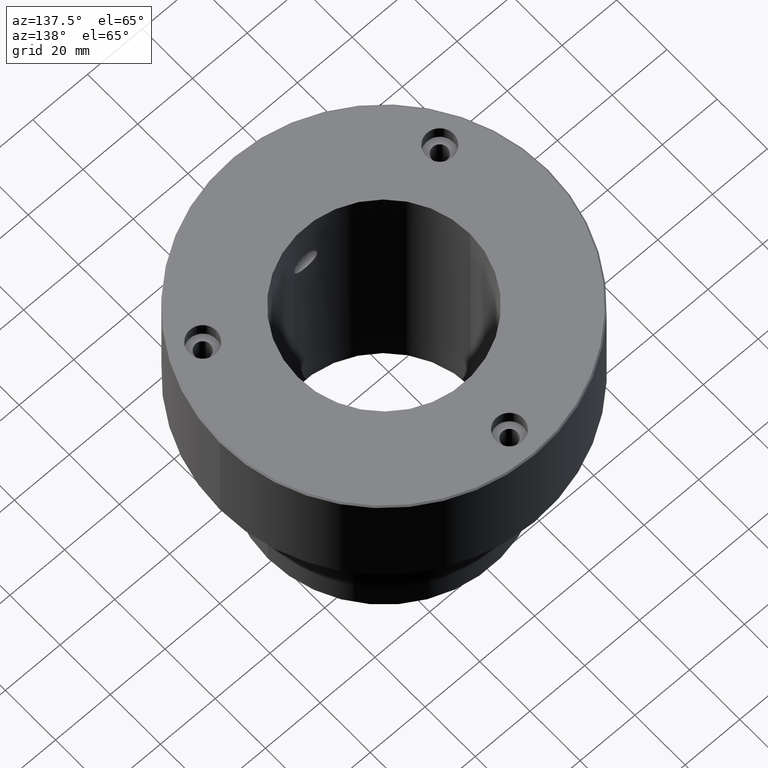
[diagram: clean part render]
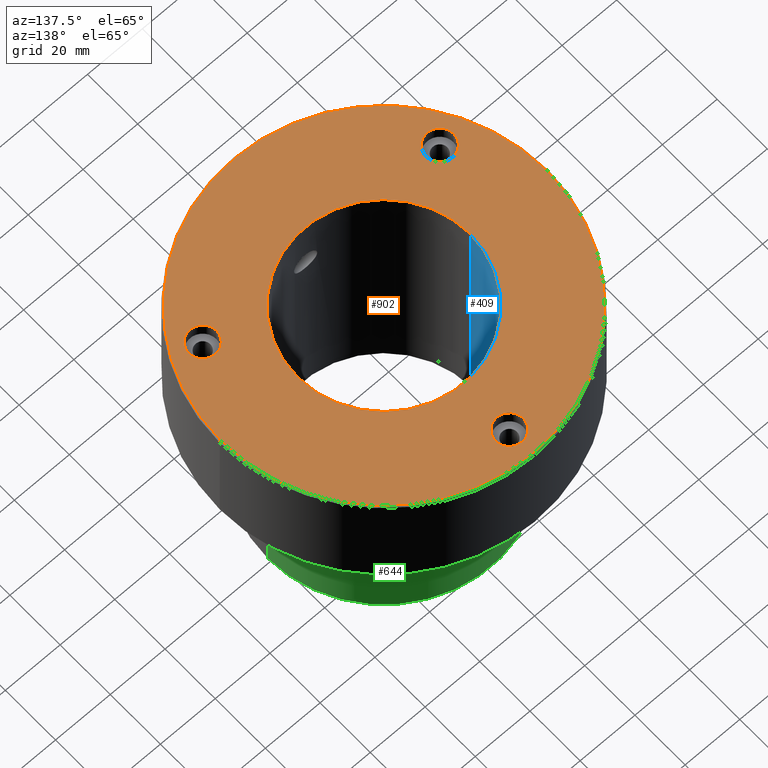
[diagram: same view with three faces highlighted in distinct colors, each labeled with its STEP entity id]
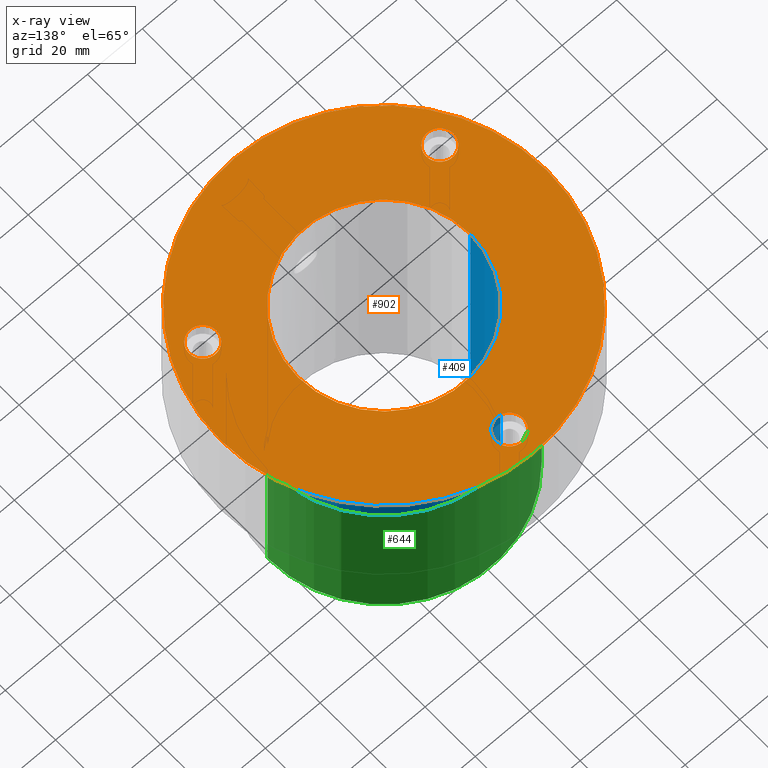
[diagram: x-ray of the same camera — body ghosted, the three highlighted faces saturated]
A machine part, auxiliary view with three faces highlighted in distinct colors.
The next image is the same camera in x-ray (body ghosted, the three faces saturated) — at least one of them is partly hidden behind the body in this view.
Their STEP definitions:

[orange] entity #902 — the highlighted planar face has unit normal (0, -0, 1).
#6 = CARTESIAN_POINT ( 'NONE',  ( 59.50000000000003553, 7.317264624905437724E-15, 0.000000000000000000 ) ) ;
#27 = DIRECTION ( 'NONE',  ( 1.000000000000000000, 0.000000000000000000, 0.000000000000000000 ) ) ;
#57 = AXIS2_PLACEMENT_3D ( 'NONE', #919, #235, #688 ) ;
#73 = CIRCLE ( 'NONE', #974, 5.000000000000000888 ) ;
#94 = PLANE ( 'NONE',  #261 ) ;
#156 = CIRCLE ( 'NONE', #1162, 5.000000000000000888 ) ;
#157 = EDGE_CURVE ( 'NONE', #242, #494, #761, .T. ) ;
#160 = DIRECTION ( 'NONE',  ( -0.000000000000000000, -0.000000000000000000, 1.000000000000000000 ) ) ;
#170 = EDGE_CURVE ( 'NONE', #830, #506, #953, .T. ) ;
#182 = ORIENTED_EDGE ( 'NONE', *, *, #1017, .F. ) ;
#225 = DIRECTION ( 'NONE',  ( 1.000000000000000000, 0.000000000000000000, 0.000000000000000000 ) ) ;
#234 = EDGE_CURVE ( 'NONE', #665, #1141, #295, .T. ) ;
#235 = DIRECTION ( 'NONE',  ( -0.000000000000000000, -0.000000000000000000, 1.000000000000000000 ) ) ;
#242 = VERTEX_POINT ( 'NONE', #515 ) ;
#258 = EDGE_CURVE ( 'NONE', #494, #242, #973, .T. ) ;
#261 = AXIS2_PLACEMENT_3D ( 'NONE', #754, #1136, #784 ) ;
#269 = DIRECTION ( 'NONE',  ( -0.000000000000000000, -0.000000000000000000, 1.000000000000000000 ) ) ;
#278 = AXIS2_PLACEMENT_3D ( 'NONE', #1214, #1100, #1114 ) ;
#284 = DIRECTION ( 'NONE',  ( 0.000000000000000000, 0.000000000000000000, -1.000000000000000000 ) ) ;
#285 = ORIENTED_EDGE ( 'NONE', *, *, #803, .T. ) ;
#295 = CIRCLE ( 'NONE', #892, 59.50000000000003553 ) ;
#303 = EDGE_CURVE ( 'NONE', #506, #830, #1124, .T. ) ;
#314 = CARTESIAN_POINT ( 'NONE',  ( -43.30127018922198801, -24.99999999999990052, 0.000000000000000000 ) ) ;
#325 = CARTESIAN_POINT ( 'NONE',  ( -5.000000000000000888, 50.00000000000000000, 0.000000000000000000 ) ) ;
#332 = DIRECTION ( 'NONE',  ( -1.000000000000000000, 0.000000000000000000, 0.000000000000000000 ) ) ;
#357 = CARTESIAN_POINT ( 'NONE',  ( 0.000000000000000000, 0.000000000000000000, 0.000000000000000000 ) ) ;
#389 = CARTESIAN_POINT ( 'NONE',  ( 0.000000000000000000, 50.00000000000000000, 0.000000000000000000 ) ) ;
#415 = DIRECTION ( 'NONE',  ( 1.000000000000000000, 0.000000000000000000, 0.000000000000000000 ) ) ;
#442 = EDGE_CURVE ( 'NONE', #1099, #846, #73, .T. ) ;
#467 = DIRECTION ( 'NONE',  ( -1.000000000000000000, 0.000000000000000000, 0.000000000000000000 ) ) ;
#470 = EDGE_LOOP ( 'NONE', ( #985, #576 ) ) ;
#494 = VERTEX_POINT ( 'NONE', #1029 ) ;
#506 = VERTEX_POINT ( 'NONE', #848 ) ;
#515 = CARTESIAN_POINT ( 'NONE',  ( -38.30127018922198090, -24.99999999999990052, 0.000000000000000000 ) ) ;
#519 = ORIENTED_EDGE ( 'NONE', *, *, #442, .F. ) ;
#533 = CARTESIAN_POINT ( 'NONE',  ( 31.50000000000000000, 3.857637417314162689E-15, 0.000000000000000000 ) ) ;
#558 = AXIS2_PLACEMENT_3D ( 'NONE', #314, #999, #225 ) ;
#571 = ORIENTED_EDGE ( 'NONE', *, *, #157, .F. ) ;
#575 = FACE_BOUND ( 'NONE', #811, .T. ) ;
#576 = ORIENTED_EDGE ( 'NONE', *, *, #170, .T. ) ;
#589 = DIRECTION ( 'NONE',  ( -0.000000000000000000, -0.000000000000000000, 1.000000000000000000 ) ) ;
#619 = AXIS2_PLACEMENT_3D ( 'NONE', #661, #284, #467 ) ;
#646 = VERTEX_POINT ( 'NONE', #906 ) ;
#648 = EDGE_LOOP ( 'NONE', ( #1134, #519 ) ) ;
#661 = CARTESIAN_POINT ( 'NONE',  ( 0.000000000000000000, 0.000000000000000000, 0.000000000000000000 ) ) ;
#665 = VERTEX_POINT ( 'NONE', #6 ) ;
#674 = FACE_BOUND ( 'NONE', #648, .T. ) ;
#688 = DIRECTION ( 'NONE',  ( 1.000000000000000000, 0.000000000000000000, 0.000000000000000000 ) ) ;
#690 = CARTESIAN_POINT ( 'NONE',  ( 0.000000000000000000, 50.00000000000000000, 0.000000000000000000 ) ) ;
#700 = DIRECTION ( 'NONE',  ( 0.000000000000000000, 0.000000000000000000, -1.000000000000000000 ) ) ;
#708 = CARTESIAN_POINT ( 'NONE',  ( 0.000000000000000000, 0.000000000000000000, 0.000000000000000000 ) ) ;
#734 = CARTESIAN_POINT ( 'NONE',  ( 38.30127018922181747, -25.00000000000018829, 0.000000000000000000 ) ) ;
#740 = AXIS2_PLACEMENT_3D ( 'NONE', #1190, #826, #27 ) ;
#741 = CIRCLE ( 'NONE', #278, 5.000000000000004441 ) ;
#745 = EDGE_CURVE ( 'NONE', #646, #793, #741, .T. ) ;
#754 = CARTESIAN_POINT ( 'NONE',  ( 0.000000000000000000, 0.000000000000000000, 0.000000000000000000 ) ) ;
#761 = CIRCLE ( 'NONE', #740, 5.000000000000004441 ) ;
#784 = DIRECTION ( 'NONE',  ( 1.000000000000000000, 0.000000000000000000, 0.000000000000000000 ) ) ;
#787 = ORIENTED_EDGE ( 'NONE', *, *, #745, .F. ) ;
#793 = VERTEX_POINT ( 'NONE', #734 ) ;
#803 = EDGE_CURVE ( 'NONE', #1141, #665, #1012, .T. ) ;
#811 = EDGE_LOOP ( 'NONE', ( #787, #182 ) ) ;
#826 = DIRECTION ( 'NONE',  ( -0.000000000000000000, -0.000000000000000000, 1.000000000000000000 ) ) ;
#830 = VERTEX_POINT ( 'NONE', #533 ) ;
#838 = CIRCLE ( 'NONE', #57, 5.000000000000004441 ) ;
#846 = VERTEX_POINT ( 'NONE', #1027 ) ;
#848 = CARTESIAN_POINT ( 'NONE',  ( -31.50000000000000000, 0.000000000000000000, 0.000000000000000000 ) ) ;
#883 = EDGE_LOOP ( 'NONE', ( #285, #1170 ) ) ;
#892 = AXIS2_PLACEMENT_3D ( 'NONE', #1015, #1174, #415 ) ;
#902 = ADVANCED_FACE ( 'NONE', ( #1151, #575, #674, #960, #1059 ), #94, .T. ) ;
#906 = CARTESIAN_POINT ( 'NONE',  ( 48.30127018922182458, -25.00000000000018829, 0.000000000000000000 ) ) ;
#910 = EDGE_CURVE ( 'NONE', #846, #1099, #156, .T. ) ;
#911 = AXIS2_PLACEMENT_3D ( 'NONE', #708, #700, #332 ) ;
#919 = CARTESIAN_POINT ( 'NONE',  ( 43.30127018922182458, -25.00000000000018829, 0.000000000000000000 ) ) ;
#930 = DIRECTION ( 'NONE',  ( 1.000000000000000000, 0.000000000000000000, 0.000000000000000000 ) ) ;
#936 = AXIS2_PLACEMENT_3D ( 'NONE', #357, #160, #930 ) ;
#953 = CIRCLE ( 'NONE', #911, 31.50000000000000000 ) ;
#960 = FACE_BOUND ( 'NONE', #470, .T. ) ;
#973 = CIRCLE ( 'NONE', #558, 5.000000000000004441 ) ;
#974 = AXIS2_PLACEMENT_3D ( 'NONE', #690, #589, #1078 ) ;
#985 = ORIENTED_EDGE ( 'NONE', *, *, #303, .T. ) ;
#999 = DIRECTION ( 'NONE',  ( -0.000000000000000000, -0.000000000000000000, 1.000000000000000000 ) ) ;
#1012 = CIRCLE ( 'NONE', #936, 59.50000000000003553 ) ;
#1015 = CARTESIAN_POINT ( 'NONE',  ( 0.000000000000000000, 0.000000000000000000, 0.000000000000000000 ) ) ;
#1017 = EDGE_CURVE ( 'NONE', #793, #646, #838, .T. ) ;
#1027 = CARTESIAN_POINT ( 'NONE',  ( 5.000000000000000888, 50.00000000000000000, 0.000000000000000000 ) ) ;
#1029 = CARTESIAN_POINT ( 'NONE',  ( -48.30127018922199511, -24.99999999999990052, 0.000000000000000000 ) ) ;
#1059 = FACE_OUTER_BOUND ( 'NONE', #883, .T. ) ;
#1063 = DIRECTION ( 'NONE',  ( 1.000000000000000000, 0.000000000000000000, 0.000000000000000000 ) ) ;
#1078 = DIRECTION ( 'NONE',  ( 1.000000000000000000, 0.000000000000000000, 0.000000000000000000 ) ) ;
#1099 = VERTEX_POINT ( 'NONE', #325 ) ;
#1100 = DIRECTION ( 'NONE',  ( -0.000000000000000000, -0.000000000000000000, 1.000000000000000000 ) ) ;
#1114 = DIRECTION ( 'NONE',  ( 1.000000000000000000, 0.000000000000000000, 0.000000000000000000 ) ) ;
#1118 = EDGE_LOOP ( 'NONE', ( #571, #1223 ) ) ;
#1124 = CIRCLE ( 'NONE', #619, 31.50000000000000000 ) ;
#1134 = ORIENTED_EDGE ( 'NONE', *, *, #910, .F. ) ;
#1136 = DIRECTION ( 'NONE',  ( 0.000000000000000000, -0.000000000000000000, 1.000000000000000000 ) ) ;
#1141 = VERTEX_POINT ( 'NONE', #1246 ) ;
#1151 = FACE_BOUND ( 'NONE', #1118, .T. ) ;
#1162 = AXIS2_PLACEMENT_3D ( 'NONE', #389, #269, #1063 ) ;
#1170 = ORIENTED_EDGE ( 'NONE', *, *, #234, .T. ) ;
#1174 = DIRECTION ( 'NONE',  ( -0.000000000000000000, -0.000000000000000000, 1.000000000000000000 ) ) ;
#1190 = CARTESIAN_POINT ( 'NONE',  ( -43.30127018922198801, -24.99999999999990052, 0.000000000000000000 ) ) ;
#1214 = CARTESIAN_POINT ( 'NONE',  ( 43.30127018922182458, -25.00000000000018829, 0.000000000000000000 ) ) ;
#1223 = ORIENTED_EDGE ( 'NONE', *, *, #258, .F. ) ;
#1246 = CARTESIAN_POINT ( 'NONE',  ( -59.50000000000003553, 0.000000000000000000, 0.000000000000000000 ) ) ;

[blue] entity #409 — the highlighted cylindrical surface (partial cylindrical patch) has radius 31.5 mm, axis along (-0, -0, -1).
#47 = LINE ( 'NONE', #825, #117 ) ;
#116 = ORIENTED_EDGE ( 'NONE', *, *, #932, .F. ) ;
#117 = VECTOR ( 'NONE', #139, 1000.000000000000000 ) ;
#134 = CIRCLE ( 'NONE', #836, 31.50000000000000000 ) ;
#139 = DIRECTION ( 'NONE',  ( -0.000000000000000000, -0.000000000000000000, -1.000000000000000000 ) ) ;
#153 = AXIS2_PLACEMENT_3D ( 'NONE', #798, #397, #508 ) ;
#254 = CARTESIAN_POINT ( 'NONE',  ( 31.50000000000000000, 3.857637417314162689E-15, -95.00000000000000000 ) ) ;
#284 = DIRECTION ( 'NONE',  ( 0.000000000000000000, 0.000000000000000000, -1.000000000000000000 ) ) ;
#288 = EDGE_CURVE ( 'NONE', #643, #367, #134, .T. ) ;
#303 = EDGE_CURVE ( 'NONE', #506, #830, #1124, .T. ) ;
#367 = VERTEX_POINT ( 'NONE', #254 ) ;
#372 = DIRECTION ( 'NONE',  ( 0.000000000000000000, 0.000000000000000000, -1.000000000000000000 ) ) ;
#381 = VECTOR ( 'NONE', #521, 1000.000000000000000 ) ;
#395 = CARTESIAN_POINT ( 'NONE',  ( -31.50000000000000000, 0.000000000000000000, -95.00000000000000000 ) ) ;
#397 = DIRECTION ( 'NONE',  ( -0.000000000000000000, -0.000000000000000000, -1.000000000000000000 ) ) ;
#409 = ADVANCED_FACE ( 'NONE', ( #1163 ), #495, .F. ) ;
#419 = CARTESIAN_POINT ( 'NONE',  ( -31.50000000000000000, 0.000000000000000000, 0.000000000000000000 ) ) ;
#467 = DIRECTION ( 'NONE',  ( -1.000000000000000000, 0.000000000000000000, 0.000000000000000000 ) ) ;
#495 = CYLINDRICAL_SURFACE ( 'NONE', #153, 31.50000000000000000 ) ;
#497 = LINE ( 'NONE', #419, #381 ) ;
#506 = VERTEX_POINT ( 'NONE', #848 ) ;
#508 = DIRECTION ( 'NONE',  ( -1.000000000000000000, 0.000000000000000000, 0.000000000000000000 ) ) ;
#521 = DIRECTION ( 'NONE',  ( -0.000000000000000000, -0.000000000000000000, -1.000000000000000000 ) ) ;
#533 = CARTESIAN_POINT ( 'NONE',  ( 31.50000000000000000, 3.857637417314162689E-15, 0.000000000000000000 ) ) ;
#540 = CARTESIAN_POINT ( 'NONE',  ( 0.000000000000000000, 0.000000000000000000, -95.00000000000000000 ) ) ;
#549 = ORIENTED_EDGE ( 'NONE', *, *, #288, .T. ) ;
#619 = AXIS2_PLACEMENT_3D ( 'NONE', #661, #284, #467 ) ;
#643 = VERTEX_POINT ( 'NONE', #395 ) ;
#660 = EDGE_CURVE ( 'NONE', #506, #643, #497, .T. ) ;
#661 = CARTESIAN_POINT ( 'NONE',  ( 0.000000000000000000, 0.000000000000000000, 0.000000000000000000 ) ) ;
#730 = EDGE_LOOP ( 'NONE', ( #116, #1146, #1079, #549 ) ) ;
#798 = CARTESIAN_POINT ( 'NONE',  ( 0.000000000000000000, 0.000000000000000000, 0.000000000000000000 ) ) ;
#825 = CARTESIAN_POINT ( 'NONE',  ( 31.50000000000000000, 3.857637417314162689E-15, 0.000000000000000000 ) ) ;
#830 = VERTEX_POINT ( 'NONE', #533 ) ;
#836 = AXIS2_PLACEMENT_3D ( 'NONE', #540, #372, #927 ) ;
#848 = CARTESIAN_POINT ( 'NONE',  ( -31.50000000000000000, 0.000000000000000000, 0.000000000000000000 ) ) ;
#927 = DIRECTION ( 'NONE',  ( -1.000000000000000000, 0.000000000000000000, 0.000000000000000000 ) ) ;
#932 = EDGE_CURVE ( 'NONE', #830, #367, #47, .T. ) ;
#1079 = ORIENTED_EDGE ( 'NONE', *, *, #660, .T. ) ;
#1124 = CIRCLE ( 'NONE', #619, 31.50000000000000000 ) ;
#1146 = ORIENTED_EDGE ( 'NONE', *, *, #303, .F. ) ;
#1163 = FACE_OUTER_BOUND ( 'NONE', #730, .T. ) ;

[green] entity #644 — the highlighted cylindrical surface (partial cylindrical patch) has radius 42.5 mm, axis along (-0, -0, 1).
#46 = DIRECTION ( 'NONE',  ( -0.000000000000000000, -0.000000000000000000, 1.000000000000000000 ) ) ;
#53 = DIRECTION ( 'NONE',  ( -1.000000000000000000, 0.000000000000000000, 0.000000000000000000 ) ) ;
#115 = VERTEX_POINT ( 'NONE', #488 ) ;
#143 = VERTEX_POINT ( 'NONE', #1073 ) ;
#162 = ORIENTED_EDGE ( 'NONE', *, *, #834, .F. ) ;
#173 = CARTESIAN_POINT ( 'NONE',  ( 0.000000000000000000, 0.000000000000000000, 0.000000000000000000 ) ) ;
#236 = ORIENTED_EDGE ( 'NONE', *, *, #885, .T. ) ;
#238 = DIRECTION ( 'NONE',  ( 1.000000000000000000, 0.000000000000000000, 0.000000000000000000 ) ) ;
#326 = ORIENTED_EDGE ( 'NONE', *, *, #492, .F. ) ;
#363 = CARTESIAN_POINT ( 'NONE',  ( 0.000000000000000000, 0.000000000000000000, -43.00000000000000000 ) ) ;
#445 = AXIS2_PLACEMENT_3D ( 'NONE', #173, #586, #707 ) ;
#459 = VECTOR ( 'NONE', #751, 1000.000000000000000 ) ;
#460 = LINE ( 'NONE', #750, #663 ) ;
#465 = EDGE_CURVE ( 'NONE', #143, #115, #722, .T. ) ;
#488 = CARTESIAN_POINT ( 'NONE',  ( -42.50000000000000000, 5.204748896376250896E-15, -99.50000000000000000 ) ) ;
#492 = EDGE_CURVE ( 'NONE', #143, #1230, #655, .T. ) ;
#586 = DIRECTION ( 'NONE',  ( -0.000000000000000000, -0.000000000000000000, 1.000000000000000000 ) ) ;
#644 = ADVANCED_FACE ( 'NONE', ( #861 ), #656, .T. ) ;
#655 = LINE ( 'NONE', #727, #459 ) ;
#656 = CYLINDRICAL_SURFACE ( 'NONE', #445, 42.50000000000000000 ) ;
#663 = VECTOR ( 'NONE', #1236, 1000.000000000000000 ) ;
#707 = DIRECTION ( 'NONE',  ( 1.000000000000000000, 0.000000000000000000, 0.000000000000000000 ) ) ;
#722 = CIRCLE ( 'NONE', #817, 42.50000000000000000 ) ;
#727 = CARTESIAN_POINT ( 'NONE',  ( 42.50000000000000000, 0.000000000000000000, 0.000000000000000000 ) ) ;
#750 = CARTESIAN_POINT ( 'NONE',  ( -42.50000000000000000, 5.204748896376250896E-15, 0.000000000000000000 ) ) ;
#751 = DIRECTION ( 'NONE',  ( -0.000000000000000000, -0.000000000000000000, 1.000000000000000000 ) ) ;
#797 = VERTEX_POINT ( 'NONE', #847 ) ;
#817 = AXIS2_PLACEMENT_3D ( 'NONE', #929, #1006, #53 ) ;
#834 = EDGE_CURVE ( 'NONE', #1230, #797, #913, .T. ) ;
#847 = CARTESIAN_POINT ( 'NONE',  ( -42.50000000000000000, 5.204748896376250896E-15, -43.00000000000000000 ) ) ;
#861 = FACE_OUTER_BOUND ( 'NONE', #1062, .T. ) ;
#864 = ORIENTED_EDGE ( 'NONE', *, *, #465, .T. ) ;
#885 = EDGE_CURVE ( 'NONE', #115, #797, #460, .T. ) ;
#913 = CIRCLE ( 'NONE', #1033, 42.50000000000000000 ) ;
#929 = CARTESIAN_POINT ( 'NONE',  ( 0.000000000000000000, 0.000000000000000000, -99.50000000000000000 ) ) ;
#1006 = DIRECTION ( 'NONE',  ( -0.000000000000000000, -0.000000000000000000, 1.000000000000000000 ) ) ;
#1033 = AXIS2_PLACEMENT_3D ( 'NONE', #363, #46, #238 ) ;
#1062 = EDGE_LOOP ( 'NONE', ( #864, #236, #162, #326 ) ) ;
#1073 = CARTESIAN_POINT ( 'NONE',  ( 42.50000000000000000, 0.000000000000000000, -99.50000000000000000 ) ) ;
#1230 = VERTEX_POINT ( 'NONE', #1234 ) ;
#1234 = CARTESIAN_POINT ( 'NONE',  ( 42.50000000000000000, 0.000000000000000000, -43.00000000000000000 ) ) ;
#1236 = DIRECTION ( 'NONE',  ( -0.000000000000000000, -0.000000000000000000, 1.000000000000000000 ) ) ;